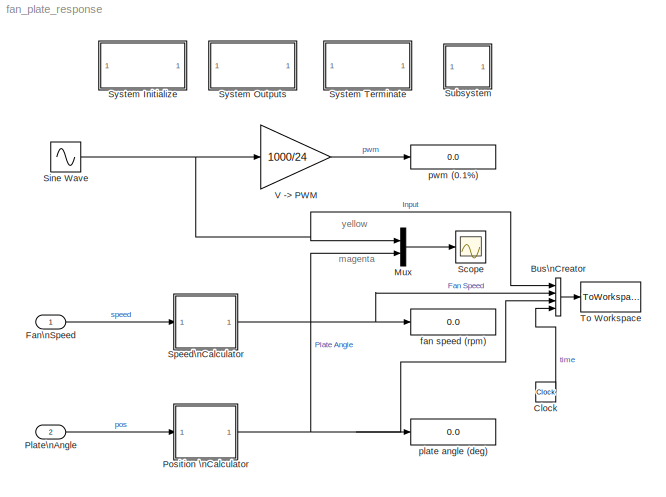
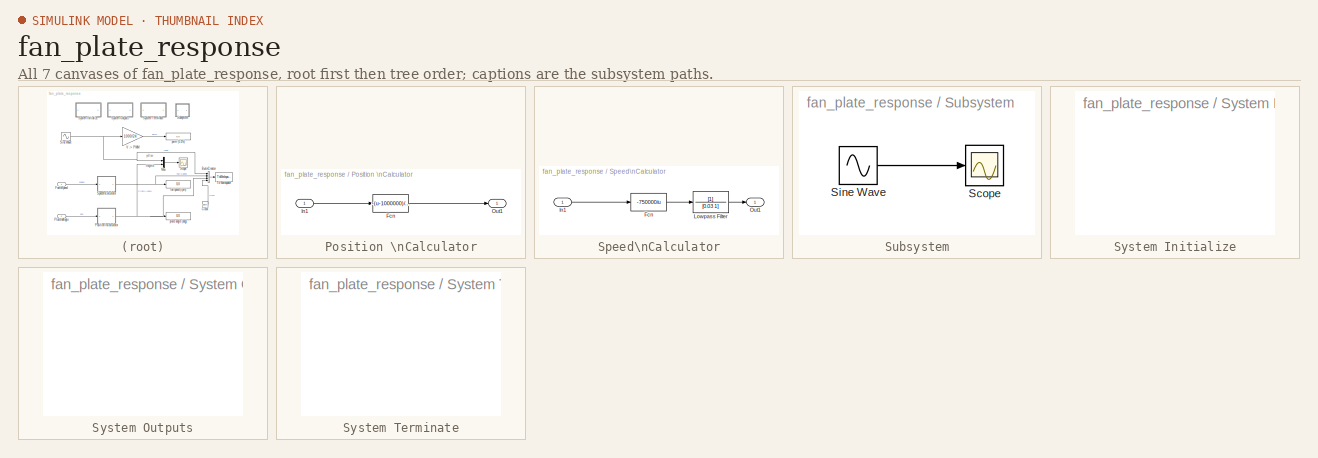
[diagram: thumbnail index - all 7 canvases of the model, root first then tree order]
MODEL fan_plate_response
KIND model
BLOCK [BusCreator] Bus\nCreator
  DisplayOption = bar
  Ports = [4, 1]
  SID = 3
BLOCK [Clock] Clock
  Decimation = 10
  SID = 4
BLOCK [Inport] Fan\nSpeed
  IconDisplay = Port number
  OutDataType = sfix(16)
  OutScaling = 2^0
  SID = 1
BLOCK [Mux] Mux
  DisplayOption = bar
  Inputs = 2
  Ports = [2, 1]
  SID = 5
BLOCK [Inport] Plate\nAngle
  IconDisplay = Port number
  OutDataType = sfix(16)
  OutScaling = 2^0
  Port = 2
  SID = 2
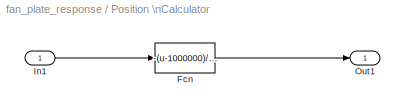
BLOCK [SubSystem] Position \nCalculator
  FunctionWithSeparateData = off
  MaskHideContents = off
  MinAlgLoopOccurrences = off
  Opaque = off
  Ports = [1, 1]
  PropExecContextOutsideSubsystem = off
  RTWSystemCode = Auto
  RequestExecContextInheritance = off
  SID = 6
BLOCK [Fcn] Position \nCalculator/Fcn
  Expr = -(u-1000000)/10000*360
  SID = 8
BLOCK [Inport] Position \nCalculator/In1
  IconDisplay = Port number
  OutDataType = sfix(16)
  OutScaling = 2^0
  SID = 7
BLOCK [Outport] Position \nCalculator/Out1
  IconDisplay = Port number
  OutDataType = sfix(16)
  OutScaling = 2^0
  SID = 9
BLOCK [Scope] Scope
  DataFormat = StructureWithTime
  Floating = off
  LimitDataPoints = off
  MaxDataPoints = 10000
  NumInputPorts = 1
  Ports = [1]
  SID = 10
  SampleTime = 0
  SaveToWorkspace = on
  TimeRange = 15
  YMax = 14
  YMin = 5.5
BLOCK [Sin] Sine Wave
  Amplitude = 2
  Bias = 12
  Frequency = 1
  Offset = 0
  Phase = 0
  Ports = [0, 1]
  SID = 11
  SampleTime = 0
  Samples = 10
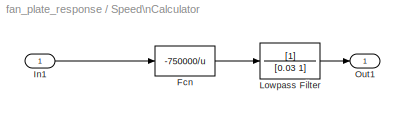
BLOCK [SubSystem] Speed\nCalculator
  FunctionWithSeparateData = off
  MaskHideContents = off
  MinAlgLoopOccurrences = off
  Opaque = off
  Ports = [1, 1]
  PropExecContextOutsideSubsystem = off
  RTWSystemCode = Auto
  RequestExecContextInheritance = off
  SID = 12
BLOCK [Fcn] Speed\nCalculator/Fcn
  Expr = -750000/u
  SID = 14
BLOCK [Inport] Speed\nCalculator/In1
  IconDisplay = Port number
  OutDataType = sfix(16)
  OutScaling = 2^0
  SID = 13
BLOCK [TransferFcn] Speed\nCalculator/Lowpass Filter
  Denominator = [0.03 1]
  SID = 15
BLOCK [Outport] Speed\nCalculator/Out1
  IconDisplay = Port number
  OutDataType = sfix(16)
  OutScaling = 2^0
  SID = 16
BLOCK [SubSystem] Subsystem
  FunctionWithSeparateData = off
  MaskHideContents = off
  MinAlgLoopOccurrences = off
  Opaque = off
  Ports = []
  PropExecContextOutsideSubsystem = off
  RTWSystemCode = Auto
  RequestExecContextInheritance = off
  SID = 25
  TreatAsAtomicUnit = on
BLOCK [Scope] Subsystem/Scope
  DataFormat = StructureWithTime
  Floating = off
  NumInputPorts = 1
  Ports = [1]
  SID = 26
  SampleTime = 0
  SaveName = ScopeData1
BLOCK [Sin] Subsystem/Sine Wave
  Amplitude = 1
  Bias = 0
  Frequency = 1
  Offset = 0
  Phase = 0
  Ports = [0, 1]
  SID = 27
  SampleTime = 0
  Samples = 10
BLOCK [SubSystem] System Initialize
  CopyFcn = cccopyfcn(gcb)
  FunctionWithSeparateData = off
  MaskDescription = Add code to a systems Initialize function
  MaskDisplay = disp('System\\nInitialize');
  MaskEnableString = off
  MaskHelp = This block contains text fields to insert custom user code sections at the declaration, execution and exit sections of the systems initialize function.  By placing this block inside a subsytem, the custom user code will appear in that subsystems function.
  MaskHideContents = off
  MaskIconFrame = on
  MaskIconOpaque = on
  MaskIconRotate = none
  MaskIconUnits = autoscale
  MaskPortRotate = default
  MaskPromptString = Mask Parameter 1:
  MaskStyleString = edit
  MaskToolTipString = on
  MaskTunableValueString = on
  MaskType = System Initialize
  MaskValueString = 0
  MaskVariables = ShowInLibBrowser=@1;
  MaskVisibilityString = off
  MinAlgLoopOccurrences = off
  Opaque = off
  OpenFcn = ccopenfcn('System Initialize Function')
  Ports = []
  PropExecContextOutsideSubsystem = off
  RTWSystemCode = Auto
  RequestExecContextInheritance = off
  SID = 17
BLOCK [SubSystem] System Outputs
  CopyFcn = cccopyfcn(gcb)
  FunctionWithSeparateData = off
  MaskDescription = Add code to a systems Outputs function
  MaskDisplay = disp('System\\nOutputs');
  MaskEnableString = off
  MaskHelp = This block contains text fields to insert custom user code sections at the declaration, execution and exit sections of the systems outputs function.  By placing this block inside a subsytem, the custom user code will appear in that subsystems function.
  MaskHideContents = off
  MaskIconFrame = on
  MaskIconOpaque = on
  MaskIconRotate = none
  MaskIconUnits = autoscale
  MaskPortRotate = default
  MaskPromptString = Mask Parameter 1:
  MaskStyleString = edit
  MaskToolTipString = on
  MaskTunableValueString = on
  MaskType = System Outputs
  MaskValueString = 0
  MaskVariables = ShowInLibBrowser=@1;
  MaskVisibilityString = off
  MinAlgLoopOccurrences = off
  Opaque = off
  OpenFcn = ccopenfcn('System Outputs Function')
  Ports = []
  PropExecContextOutsideSubsystem = off
  RTWSystemCode = Auto
  RequestExecContextInheritance = off
  SID = 18
BLOCK [SubSystem] System Terminate
  CopyFcn = cccopyfcn(gcb)
  FunctionWithSeparateData = off
  MaskDescription = Add code to a systems Terminate function
  MaskDisplay = disp('System\\nTerminate');
  MaskEnableString = off
  MaskHelp = This block contains text fields to insert custom user code sections at the declaration, execution and exit sections of the systems terminate function.  By placing this block inside a subsytem, the custom user code will appear in that subsystems function.
  MaskHideContents = off
  MaskIconFrame = on
  MaskIconOpaque = on
  MaskIconRotate = none
  MaskIconUnits = autoscale
  MaskPortRotate = default
  MaskPromptString = Mask Parameter 1:
  MaskStyleString = edit
  MaskToolTipString = on
  MaskTunableValueString = on
  MaskType = System Terminate
  MaskValueString = 0
  MaskVariables = ShowInLibBrowser=@1;
  MaskVisibilityString = off
  MinAlgLoopOccurrences = off
  Opaque = off
  OpenFcn = ccopenfcn('System Terminate Function')
  Ports = []
  PropExecContextOutsideSubsystem = off
  RTWSystemCode = Auto
  RequestExecContextInheritance = off
  SID = 19
BLOCK [ToWorkspace] To Workspace
  MaxDataPoints = inf
  Ports = [1]
  SID = 20
  SampleTime = -1
  SaveFormat = Array
  VariableName = simout
BLOCK [Gain] V -> PWM
  Gain = 1000/24
  OutDataType = sfix(16)
  OutDataTypeMode = Inherit via internal rule
  OutDataTypeStr = Inherit: Inherit via internal rule
  OutScaling = 2^0
  ParameterDataType = sfix(16)
  ParameterScaling = 2^0
  SID = 21
  SaturateOnIntegerOverflow = off
BLOCK [Display] fan speed (rpm)
  Decimation = 1
  Lockdown = off
  Ports = [1]
  SID = 22
BLOCK [Display] plate angle (deg)
  Decimation = 1
  Lockdown = off
  Ports = [1]
  SID = 23
BLOCK [Display] pwm (0.1%)
  Decimation = 1
  Lockdown = off
  Ports = [1]
  SID = 24
ANNOTATION (root): magenta
ANNOTATION (root): yellow
LINE Bus\nCreator:1 -> To Workspace:1
LINE Clock:1 -> Bus\nCreator:4
LINE Fan\nSpeed:1 -> Speed\nCalculator:1
LINE Mux:1 -> Scope:1
LINE Plate\nAngle:1 -> Position \nCalculator:1
LINE Position \nCalculator/Fcn:1 -> Position \nCalculator/Out1:1
LINE Position \nCalculator/In1:1 -> Position \nCalculator/Fcn:1
NET Position \nCalculator:1 -> Bus\nCreator:3, Mux:2, plate angle (deg):1
NET Sine Wave:1 -> Bus\nCreator:1, Mux:1, V -> PWM:1
LINE Speed\nCalculator/Fcn:1 -> Speed\nCalculator/Lowpass Filter:1
LINE Speed\nCalculator/In1:1 -> Speed\nCalculator/Fcn:1
LINE Speed\nCalculator/Lowpass Filter:1 -> Speed\nCalculator/Out1:1
NET Speed\nCalculator:1 -> Bus\nCreator:2, fan speed (rpm):1
LINE Subsystem/Sine Wave:1 -> Subsystem/Scope:1
LINE V -> PWM:1 -> pwm (0.1%):1
note: NET lines group one-source signal fan-out (src -> all destinations, sorted); 1:1 wires keep LINE
